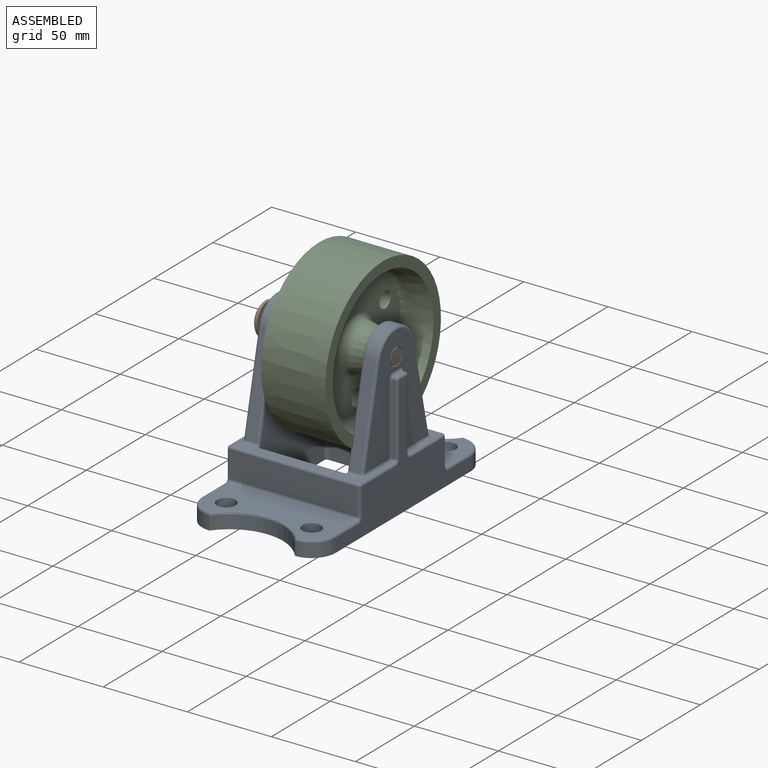
[diagram: assembled view]
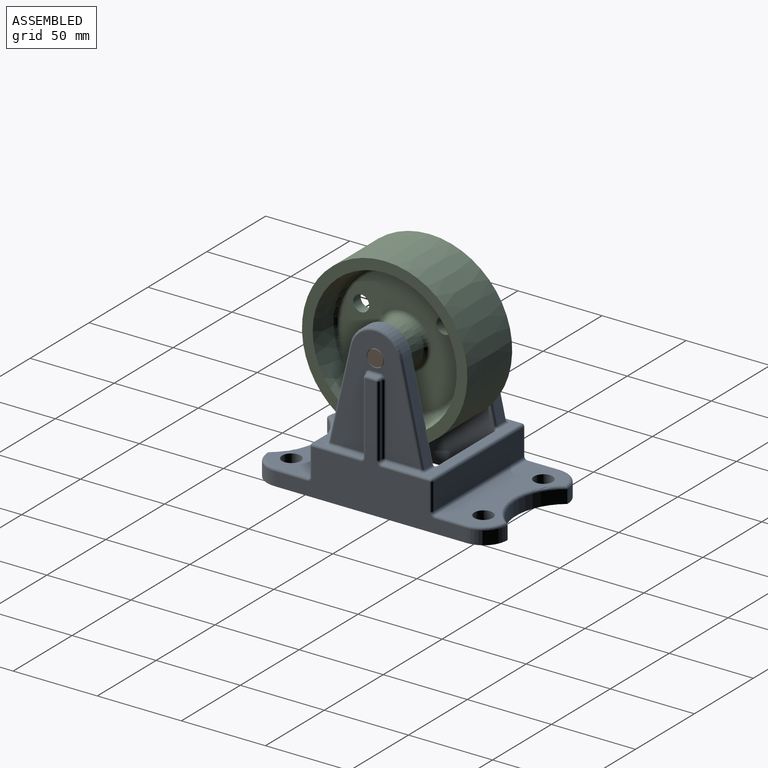
[diagram: assembled view, second angle]
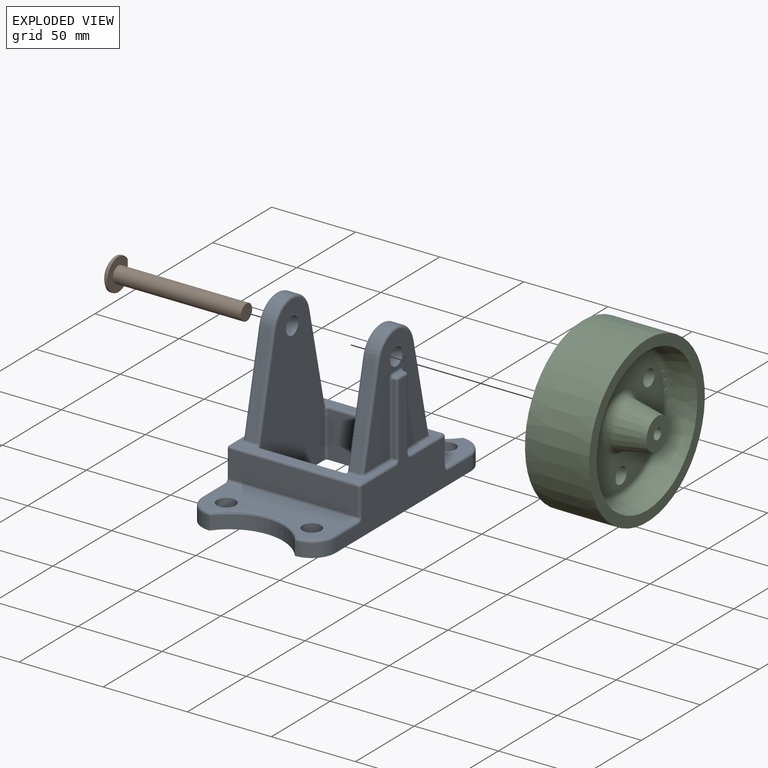
[diagram: exploded view]
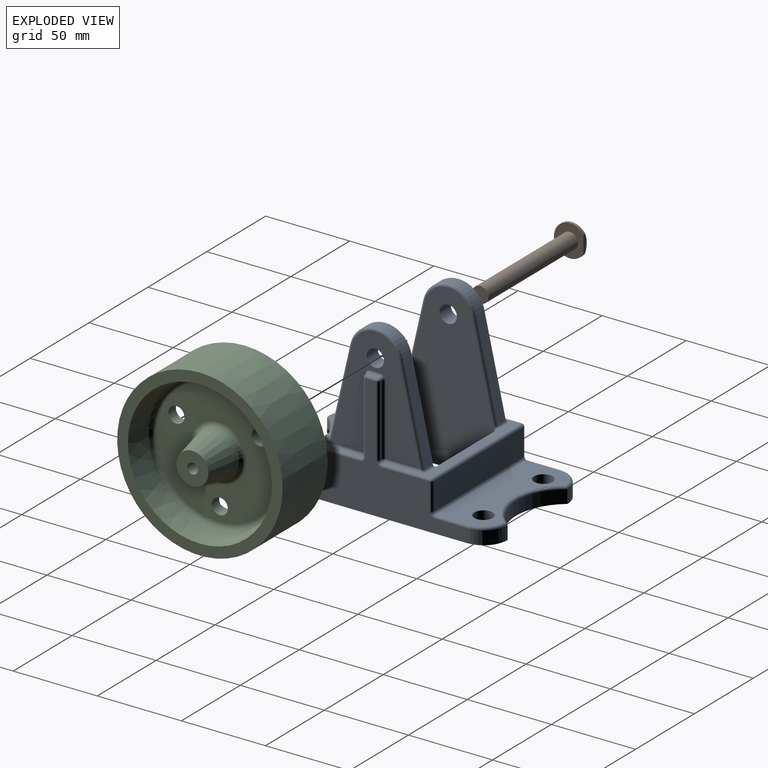
[diagram: exploded view, second angle]
ASSEMBLY  parts=3 mates=2
PART A: 147 faces, bbox 81.7x145.2x99.7 mm
  f0: plane 66.68x53.17mm, normal (1,0,0), area 1827.9mm2, adj f38,f100,f101,f109,f116,f117,f124,f125
  f1: plane 96.84x53.98mm, normal (-1,0,0), area 4025.6mm2, adj f19,f38,f121,f134,f138,f141,f142,f145
  f2: plane 96.84x53.98mm, normal (1,0,0), area 4025.6mm2, adj f19,f36,f87,f96,f97,f106,f114,f120
  f3: plane 66.68x53.17mm, normal (-1,0,0), area 1827.9mm2, adj f36,f54,f61,f69,f70,f77,f85,f86
  f4: plane 76.2x28.58mm, normal (0,0,1), area 412.7mm2, adj f75,f84,f93,f104,f112,f113,f119,f126
  f5: plane 76.2x31.73mm, normal (0,0,1), area 1692.6mm2, adj f15,f16,f39,f40,f41,f44,f49,f50
  f6: plane 76.2x31.73mm, normal (0,0,1), area 1692.6mm2, adj f14,f18,f51,f58,f59,f65,f72,f73
  f7: plane 114.3x72.23mm, normal (-1,0,0), area 2533.8mm2, adj f8,f17,f19,f40,f42,f43,f46,f47
  f8: cylinder r=14.29mm len=14.29mm, axis (0,0,-1), area 178.1mm2, adj f7,f9,f19,f51
  f9: cylinder r=31.75mm len=50.8mm, axis (0,0,-1), area 467.4mm2, adj f8,f10,f19,f58
  f10: cylinder r=14.29mm len=14.29mm, axis (0,0,-1), area 178.1mm2, adj f9,f11,f19,f65
  f11: plane 114.3x72.23mm, normal (1,0,0), area 2533.8mm2, adj f10,f12,f19,f50,f57,f64,f72,f79
  f12: cylinder r=14.29mm len=14.29mm, axis (0,0,-1), area 178.1mm2, adj f11,f13,f19,f44
  f13: cylinder r=31.75mm len=50.8mm, axis (0,0,-1), area 467.4mm2, adj f12,f17,f19,f41
  f14: cylinder r=5.56mm len=11.11mm, axis (0,0,-1), area 332.5mm2, adj f6,f19
  f15: cylinder r=5.56mm len=11.11mm, axis (0,0,-1), area 332.5mm2, adj f5,f19
  f16: cylinder r=5.56mm len=11.11mm, axis (0,0,-1), area 332.5mm2, adj f5,f19
  f17: cylinder r=14.29mm len=14.29mm, axis (0,0,-1), area 178.1mm2, adj f7,f13,f19,f39
  f18: cylinder r=5.56mm len=11.11mm, axis (0,0,-1), area 332.5mm2, adj f6,f19
  f19: plane 142.88x79.38mm, normal (0,0,-1), area 6883.9mm2, adj f1,f2,f7,f8,f9,f10,f11,f12
  f20: plane 49.21x26.99mm, normal (0,-1,0), area 1328.1mm2, adj f19,f97,f115,f121
  f21: plane 49.21x26.99mm, normal (0,1,0), area 1328.1mm2, adj f19,f128,f137,f141
  f22: plane 76.2x15.88mm, normal (0,1,0), area 1209.7mm2, adj f48,f49,f63,f64
  f23: plane 76.2x15.88mm, normal (0,-1,0), area 1209.7mm2, adj f73,f74,f92,f93
  f24: plane 76.2x28.58mm, normal (0,0,1), area 412.7mm2, adj f47,f55,f63,f70,f78,f79,f88,f99
  f25: plane 42.07x0.79mm, normal (0,1,0), area 33.4mm2, adj f42,f53,f54,f55
  f26: plane 42.07x0.79mm, normal (0,-1,0), area 33.4mm2, adj f67,f68,f84,f85
  f27: plane 6.35x0.79mm, normal (0,0,1), area 5mm2, adj f52,f53,f68,f69
  f28: plane 42.07x0.79mm, normal (0,-1,0), area 33.4mm2, adj f110,f111,f125,f126
  f29: plane 42.07x0.79mm, normal (0,1,0), area 33.4mm2, adj f80,f90,f99,f100
  f30: plane 6.35x0.79mm, normal (0,0,1), area 5mm2, adj f90,f91,f109,f110
  f31: cylinder r=15.88mm len=30.96mm, axis (1,0,0), area 271.5mm2, adj f32,f35,f95,f106
  f32: plane 56.27x12.82mm, normal (0,0.98,0.22), area 366.4mm2, adj f31,f86,f88,f96
  f33: plane 56.27x12.82mm, normal (0,0.98,0.22), area 366.4mm2, adj f34,f124,f130,f138
  f34: cylinder r=15.88mm len=30.96mm, axis (1,0,0), area 271.5mm2, adj f33,f37,f131,f142
  f35: plane 56.27x12.82mm, normal (0,-0.98,0.22), area 366.4mm2, adj f31,f105,f114,f119
  f36: cylinder r=5.16mm len=10.32mm, axis (1,0,0), area 308.8mm2, adj f2,f3
  f37: plane 56.27x12.82mm, normal (0,-0.98,0.22), area 366.4mm2, adj f34,f135,f143,f145
  f38: cylinder r=5.16mm len=10.32mm, axis (1,0,0), area 308.8mm2, adj f0,f1
  f39: torus R=12.7mm, axis (0,0,1), area 53mm2, adj f5,f17,f40,f41
  f40: cylinder r=1.59mm len=19.05mm, axis (0,1,0), area 47.5mm2, adj f5,f7,f39,f43
  f41: torus R=33.34mm, axis (0,0,1), area 148mm2, adj f5,f13,f39,f44
  f42: cylinder r=1.59mm len=42.07mm, axis (0,0,-1), area 104.9mm2, adj f7,f25,f45,f46
  f43: torus R=3.17mm, axis (1,0,0), area 8.5mm2, adj f7,f40,f48,f49
  f44: torus R=12.7mm, axis (0,0,1), area 53mm2, adj f5,f12,f41,f50
  f45: sphere r=1.59mm, area 4mm2, adj f42,f52,f53
  f46: torus R=3.17mm, axis (1,0,0), area 8.5mm2, adj f7,f42,f47,f55
  f47: cylinder r=1.59mm len=28.58mm, axis (0,1,0), area 71.3mm2, adj f7,f24,f46,f56
  f48: cylinder r=1.59mm len=15.88mm, axis (0,0,-1), area 39.6mm2, adj f7,f22,f43,f56
  f49: cylinder r=1.59mm len=76.2mm, axis (1,0,0), area 190mm2, adj f5,f22,f43,f57
  f50: cylinder r=1.59mm len=19.05mm, axis (0,-1,0), area 47.5mm2, adj f5,f11,f44,f57
  f51: torus R=12.7mm, axis (0,0,1), area 53mm2, adj f6,f8,f58,f59
  f52: cylinder r=1.59mm len=6.35mm, axis (0,1,0), area 15.8mm2, adj f7,f27,f45,f60
  f53: cylinder r=1.59mm len=1.59mm, axis (1,0,0), area 2mm2, adj f25,f27,f45,f61
  f54: cylinder r=1.59mm len=42.07mm, axis (0,0,1), area 104.9mm2, adj f3,f25,f61,f62
  f55: cylinder r=1.59mm len=1.59mm, axis (-1,0,0), area 2mm2, adj f24,f25,f46,f62
  f56: sphere r=1.59mm, area 4mm2, adj f47,f48,f63
  f57: torus R=3.17mm, axis (1,0,0), area 8.5mm2, adj f11,f49,f50,f64
  f58: torus R=33.34mm, axis (0,0,1), area 148mm2, adj f6,f9,f51,f65
  f59: cylinder r=1.59mm len=19.05mm, axis (0,1,0), area 47.5mm2, adj f6,f7,f51,f66
  f60: sphere r=1.59mm, area 4mm2, adj f52,f67,f68
  f61: torus R=3.17mm, axis (1,0,0), area 8.5mm2, adj f3,f53,f54,f69
  f62: sphere r=1.59mm, area 4mm2, adj f54,f55,f70
  f63: cylinder r=1.59mm len=76.2mm, axis (1,0,0), area 190mm2, adj f22,f24,f56,f71
  f64: cylinder r=1.59mm len=15.88mm, axis (0,0,1), area 39.6mm2, adj f11,f22,f57,f71
  f65: torus R=12.7mm, axis (0,0,1), area 53mm2, adj f6,f10,f58,f72
  f66: torus R=3.17mm, axis (1,0,0), area 8.5mm2, adj f7,f59,f73,f74
  f67: cylinder r=1.59mm len=42.07mm, axis (0,0,1), area 104.9mm2, adj f7,f26,f60,f76
  f68: cylinder r=1.59mm len=1.59mm, axis (-1,0,0), area 2mm2, adj f26,f27,f60,f77
  f69: cylinder r=1.59mm len=6.35mm, axis (0,-1,0), area 15.8mm2, adj f3,f27,f61,f77
  f70: cylinder r=1.59mm len=20.24mm, axis (0,-1,0), area 50.5mm2, adj f3,f24,f62,f78
  f71: sphere r=1.59mm, area 4mm2, adj f63,f64,f79
  f72: cylinder r=1.59mm len=19.05mm, axis (0,-1,0), area 47.5mm2, adj f6,f11,f65,f82
  f73: cylinder r=1.59mm len=76.2mm, axis (-1,0,0), area 190mm2, adj f6,f23,f66,f82
  f74: cylinder r=1.59mm len=15.88mm, axis (0,0,-1), area 39.6mm2, adj f7,f23,f66,f83
  f75: cylinder r=1.59mm len=28.58mm, axis (0,1,0), area 71.3mm2, adj f4,f7,f76,f83
  f76: torus R=3.17mm, axis (1,0,0), area 8.5mm2, adj f7,f67,f75,f84
  f77: torus R=3.17mm, axis (1,0,0), area 8.5mm2, adj f3,f68,f69,f85
  f78: bspline ~3.82x3.18mm, area 8.1mm2, adj f24,f70,f86,f88
  f79: cylinder r=1.59mm len=28.58mm, axis (0,-1,0), area 71.3mm2, adj f11,f24,f71,f89
  f80: cylinder r=1.59mm len=42.07mm, axis (0,0,-1), area 104.9mm2, adj f11,f29,f81,f89
  f81: sphere r=1.59mm, area 4mm2, adj f80,f90,f91
  f82: torus R=3.17mm, axis (1,0,0), area 8.5mm2, adj f11,f72,f73,f92
  f83: sphere r=1.59mm, area 4mm2, adj f74,f75,f93
  f84: cylinder r=1.59mm len=1.59mm, axis (1,0,0), area 2mm2, adj f4,f26,f76,f94
  f85: cylinder r=1.59mm len=42.07mm, axis (0,0,-1), area 104.9mm2, adj f3,f26,f77,f94
  f86: cylinder r=1.59mm len=56.62mm, axis (0,0.22,-0.98), area 143.2mm2, adj f3,f32,f78,f95
  f87: torus R=3.17mm, axis (1,0,0), area 1.2mm2, adj f2,f88,f96,f98
  f88: cylinder r=1.59mm len=8.13mm, axis (1,0,0), area 14.3mm2, adj f24,f32,f78,f87,f98
  f89: torus R=3.17mm, axis (1,0,0), area 8.5mm2, adj f11,f79,f80,f99
  f90: cylinder r=1.59mm len=1.59mm, axis (1,0,0), area 2mm2, adj f29,f30,f81,f101
  f91: cylinder r=1.59mm len=6.35mm, axis (0,-1,0), area 15.8mm2, adj f11,f30,f81,f102
  f92: cylinder r=1.59mm len=15.88mm, axis (0,0,1), area 39.6mm2, adj f11,f23,f82,f103
  f93: cylinder r=1.59mm len=76.2mm, axis (-1,0,0), area 190mm2, adj f4,f23,f83,f103
  f94: sphere r=1.59mm, area 4mm2, adj f84,f85,f104
  f95: torus R=14.29mm, axis (1,0,0), area 102.8mm2, adj f3,f31,f86,f105
  f96: cylinder r=1.59mm len=56.62mm, axis (0,-0.22,0.98), area 143.9mm2, adj f2,f32,f87,f106
  f97: cylinder r=1.59mm len=28.77mm, axis (0,0,-1), area 68.1mm2, adj f2,f19,f20,f98,f107
  f98: bspline ~3.06x2.82mm, area 5.7mm2, adj f87,f88,f97,f107
  f99: cylinder r=1.59mm len=1.59mm, axis (-1,0,0), area 2mm2, adj f24,f29,f89,f108
  f100: cylinder r=1.59mm len=42.07mm, axis (0,0,-1), area 104.9mm2, adj f0,f29,f101,f108
  f101: torus R=3.17mm, axis (-1,0,0), area 8.5mm2, adj f0,f90,f100,f109
  f102: sphere r=1.59mm, area 4mm2, adj f91,f110,f111
  f103: sphere r=1.59mm, area 4mm2, adj f92,f93,f112
  f104: cylinder r=1.59mm len=20.24mm, axis (0,-1,0), area 50.5mm2, adj f3,f4,f94,f113
  f105: cylinder r=1.59mm len=56.62mm, axis (0,0.22,0.98), area 143.2mm2, adj f3,f35,f95,f113
  f106: torus R=14.29mm, axis (1,0,0), area 102.8mm2, adj f2,f31,f96,f114
  f107: torus R=3.17mm, axis (0,0,1), area 2.4mm2, adj f24,f97,f98,f115
  f108: sphere r=1.59mm, area 4mm2, adj f99,f100,f116
  f109: cylinder r=1.59mm len=6.35mm, axis (0,-1,0), area 15.8mm2, adj f0,f30,f101,f117
  f110: cylinder r=1.59mm len=1.59mm, axis (-1,0,0), area 2mm2, adj f28,f30,f102,f117
  f111: cylinder r=1.59mm len=42.07mm, axis (0,0,1), area 104.9mm2, adj f11,f28,f102,f118
  f112: cylinder r=1.59mm len=28.58mm, axis (0,-1,0), area 71.3mm2, adj f4,f11,f103,f118
  f113: bspline ~3.82x3.31mm, area 8.1mm2, adj f4,f104,f105,f119
  f114: cylinder r=1.59mm len=56.62mm, axis (0,-0.22,-0.98), area 143.9mm2, adj f2,f35,f106,f120
  f115: cylinder r=1.59mm len=49.21mm, axis (-1,0,0), area 122.7mm2, adj f20,f24,f107,f122
  f116: cylinder r=1.59mm len=20.24mm, axis (0,1,0), area 50.5mm2, adj f0,f24,f108,f123
  f117: torus R=3.17mm, axis (-1,0,0), area 8.5mm2, adj f0,f109,f110,f125
  f118: torus R=3.17mm, axis (1,0,0), area 8.5mm2, adj f11,f111,f112,f126
  f119: cylinder r=1.59mm len=8.13mm, axis (1,0,0), area 14.3mm2, adj f4,f35,f113,f120,f127
  f120: torus R=3.17mm, axis (1,0,0), area 1.2mm2, adj f2,f114,f119,f127
  f121: cylinder r=1.59mm len=28.77mm, axis (0,0,1), area 68.1mm2, adj f1,f19,f20,f122,f129
  f122: torus R=3.17mm, axis (0,0,1), area 2.4mm2, adj f24,f115,f121,f129
  f123: bspline ~3.82x3.18mm, area 8.1mm2, adj f24,f116,f124,f130
  f124: cylinder r=1.59mm len=56.62mm, axis (0,0.22,-0.98), area 143.2mm2, adj f0,f33,f123,f131
  f125: cylinder r=1.59mm len=42.07mm, axis (0,0,1), area 104.9mm2, adj f0,f28,f117,f132
  f126: cylinder r=1.59mm len=1.59mm, axis (1,0,0), area 2mm2, adj f4,f28,f118,f132
  f127: bspline ~3.01x2.67mm, area 5.7mm2, adj f119,f120,f128,f133
  f128: cylinder r=1.59mm len=28.77mm, axis (0,0,1), area 68.1mm2, adj f2,f19,f21,f127,f133
  f129: bspline ~3.01x2.67mm, area 5.7mm2, adj f121,f122,f130,f134
  f130: cylinder r=1.59mm len=8.13mm, axis (1,0,0), area 14.3mm2, adj f24,f33,f123,f129,f134
  f131: torus R=14.29mm, axis (-1,0,0), area 102.8mm2, adj f0,f34,f124,f135
  f132: sphere r=1.59mm, area 4mm2, adj f125,f126,f136
  f133: torus R=3.17mm, axis (0,0,1), area 2.4mm2, adj f4,f127,f128,f137
  f134: torus R=3.17mm, axis (1,0,0), area 1.2mm2, adj f1,f129,f130,f138
  f135: cylinder r=1.59mm len=56.62mm, axis (0,0.22,0.98), area 143.2mm2, adj f0,f37,f131,f139
  f136: cylinder r=1.59mm len=20.24mm, axis (0,1,0), area 50.5mm2, adj f0,f4,f132,f139
  f137: cylinder r=1.59mm len=49.21mm, axis (1,0,0), area 122.7mm2, adj f4,f21,f133,f140
  f138: cylinder r=1.59mm len=56.62mm, axis (0,0.22,-0.98), area 143.9mm2, adj f1,f33,f134,f142
  f139: bspline ~3.82x3.73mm, area 8.1mm2, adj f4,f135,f136,f143
  f140: torus R=3.17mm, axis (0,0,1), area 2.4mm2, adj f4,f137,f141,f144
  f141: cylinder r=1.59mm len=28.77mm, axis (0,0,-1), area 68.1mm2, adj f1,f19,f21,f140,f144
  f142: torus R=14.29mm, axis (1,0,0), area 102.8mm2, adj f1,f34,f138,f145
  f143: cylinder r=1.59mm len=8.13mm, axis (1,0,0), area 14.3mm2, adj f4,f37,f139,f144,f146
  f144: bspline ~3.06x2.82mm, area 5.7mm2, adj f140,f141,f143,f146
  f145: cylinder r=1.59mm len=56.62mm, axis (0,0.22,0.98), area 143.9mm2, adj f1,f37,f142,f146
  f146: torus R=3.17mm, axis (1,0,0), area 1.2mm2, adj f1,f143,f144,f145
PART B: 8 faces, bbox 19.1x19x81 mm
  f0: plane 19.05x17.46mm, normal (0,0,-1), area 202.4mm2, adj f1,f5,f7
  f1: cylinder r=9.53mm len=19.05mm, axis (0,0,-1), area 77.3mm2, adj f0,f2,f7
  f2: plane 19.05x17.46mm, normal (0,0,1), area 1.3mm2, adj f1,f3,f7
  f3: torus R=1.72mm, axis (0,0,-1), area 300.3mm2, adj f2,f6,f7
  f4: plane 9.53x9.53mm, normal (0,0,-1), area 71.3mm2, adj f5
  f5: cylinder r=4.76mm len=76.2mm, axis (0,0,-1), area 2280.2mm2, adj f0,f4
  f6: plane 3.44x3.44mm, normal (0,0,1), area 9.3mm2, adj f3
  f7: plane 10.53x2.86mm, normal (0,1,0), area 25.7mm2, adj f0,f1,f2,f3
PART C: 19 faces, bbox 50.8x98.3x98.3 mm
  f0: cone r=49.15mm half-angle=0deg, axis (1,0,0), area 11768.6mm2, adj f1,f15
  f1: plane 98.3x98.3mm, normal (-1,0,0), area 1834.3mm2, adj f0,f2
  f2: cone r=42.8mm half-angle=11.3deg, axis (-1,0,0), area 3539.9mm2, adj f1,f3
  f3: torus R=37.02mm, axis (-1,0,0), area 1065.2mm2, adj f2,f4
  f4: plane 74.04x74.04mm, normal (-1,0,0), area 3231.6mm2, adj f3,f5,f16,f17,f18
  f5: torus R=16.55mm, axis (-1,0,0), area 402.8mm2, adj f4,f6
  f6: cone r=13.43mm half-angle=11.2deg, axis (1,0,0), area 1446.5mm2, adj f5,f7
  f7: plane 19.05x19.05mm, normal (-1,0,0), area 253.4mm2, adj f6,f8
  f8: cone r=3.2mm half-angle=0deg, axis (1,0,0), area 1017.2mm2, adj f7,f9
  f9: plane 19.1x19.1mm, normal (1,0,0), area 254.3mm2, adj f8,f10
  f10: cone r=13.46mm half-angle=11.2deg, axis (-1,0,0), area 1449.5mm2, adj f9,f11
  f11: torus R=16.57mm, axis (-1,0,0), area 403.5mm2, adj f10,f12
  f12: plane 74.09x74.09mm, normal (1,0,0), area 3234.7mm2, adj f11,f13,f16,f17,f18
  f13: torus R=37.04mm, axis (-1,0,0), area 1065.9mm2, adj f12,f14
  f14: cone r=42.82mm half-angle=11.3deg, axis (1,0,0), area 3541.9mm2, adj f13,f15
  f15: plane 98.35x98.35mm, normal (1,0,0), area 1835.2mm2, adj f0,f14
  f16: cylinder r=4.76mm len=9.53mm, axis (1,0,0), area 190mm2, adj f4,f12
  f17: cylinder r=4.76mm len=9.53mm, axis (1,0,0), area 190mm2, adj f4,f12
  f18: cylinder r=4.76mm len=9.53mm, axis (1,0,0), area 190mm2, adj f4,f12
PLACE A t=(16.95,41.28,-102.02)mm
PLACE B rot(axis=(0,-1,0),90deg) t=(54.09,43.15,-19.47)mm
PLACE C t=(27.11,43.15,-13.94)mm
MATE fastened C.f0 <-> A.f31  axis (-1,0,0) through (52.51,43.15,-19.47)mm
MATE fastened B.f1 <-> A.f31  axis (1,0,0) through (54.09,43.15,-19.47)mm
